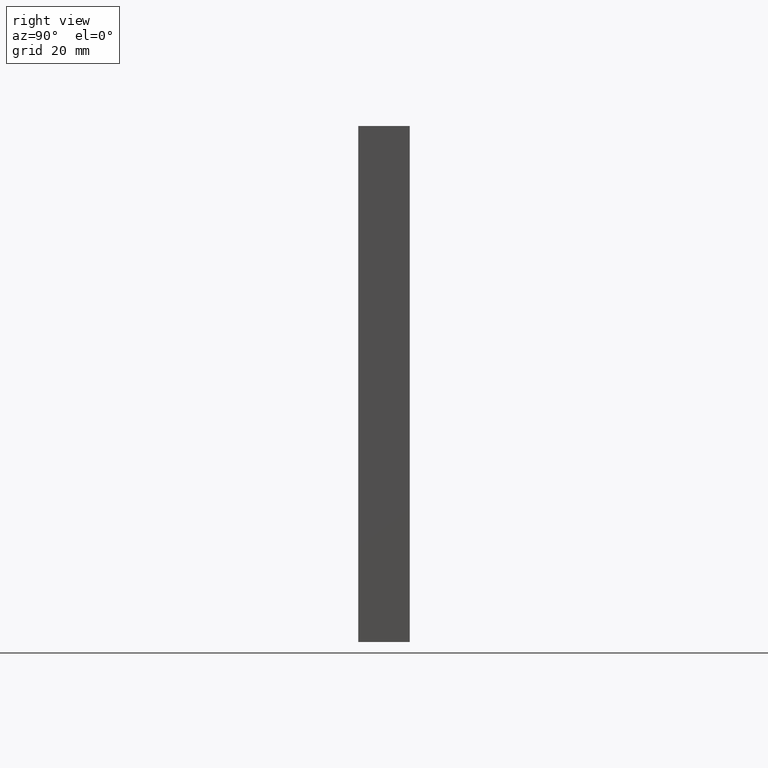
[diagram: clean part render]
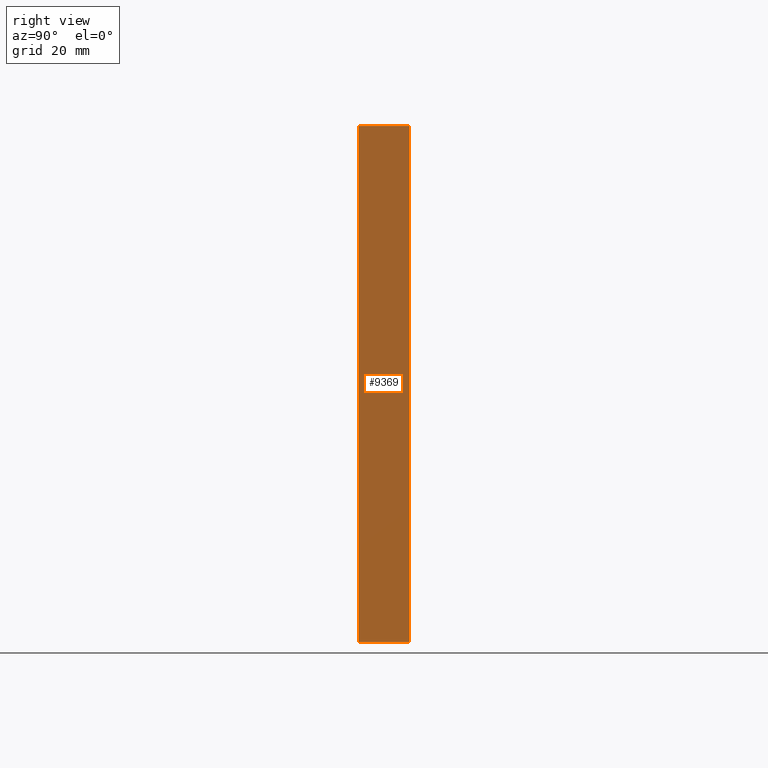
[diagram: same view with one face highlighted and labeled with its STEP entity id]
A machine part, right view. The second image highlights one B-rep face of the part: STEP entity #9369.
In plain terms, the highlighted planar face has unit normal (-1, 0, 0).
Its self-contained STEP definition (entity closure, byte-faithful):
#13 = ORIENTED_EDGE ( 'NONE', *, *, #9505, .F. ) ;
#169 = EDGE_CURVE ( 'NONE', #13005, #1993, #6699, .T. ) ;
#220 = FACE_OUTER_BOUND ( 'NONE', #2548, .T. ) ;
#549 = ORIENTED_EDGE ( 'NONE', *, *, #1329, .T. ) ;
#569 = VECTOR ( 'NONE', #3982, 1000.000000000000000 ) ;
#1191 = CARTESIAN_POINT ( 'NONE',  ( 49.99999999999999289, 10.00000000000000000, -50.00000000000000711 ) ) ;
#1329 = EDGE_CURVE ( 'NONE', #13005, #4646, #11729, .T. ) ;
#1699 = CARTESIAN_POINT ( 'NONE',  ( 49.99999999999999289, 0.000000000000000000, -50.00000000000000711 ) ) ;
#1993 = VERTEX_POINT ( 'NONE', #13055 ) ;
#2548 = EDGE_LOOP ( 'NONE', ( #9999, #13, #13595, #549 ) ) ;
#2861 = DIRECTION ( 'NONE',  ( -0.000000000000000000, -1.000000000000000000, -0.000000000000000000 ) ) ;
#3460 = LINE ( 'NONE', #1699, #569 ) ;
#3982 = DIRECTION ( 'NONE',  ( -6.938893903907228378E-17, -0.000000000000000000, -1.000000000000000000 ) ) ;
#4646 = VERTEX_POINT ( 'NONE', #11408 ) ;
#4939 = CARTESIAN_POINT ( 'NONE',  ( 49.99999999999999289, 10.00000000000000000, -50.00000000000000711 ) ) ;
#5787 = DIRECTION ( 'NONE',  ( -1.000000000000000000, 0.000000000000000000, 6.938893903907228378E-17 ) ) ;
#6511 = LINE ( 'NONE', #4939, #10906 ) ;
#6699 = LINE ( 'NONE', #1191, #12095 ) ;
#7138 = CARTESIAN_POINT ( 'NONE',  ( 50.00000000000000000, 10.00000000000000000, 49.99999999999999289 ) ) ;
#7162 = CARTESIAN_POINT ( 'NONE',  ( 49.99999999999999289, 10.00000000000000000, -50.00000000000000711 ) ) ;
#9361 = PLANE ( 'NONE',  #12660 ) ;
#9369 = ADVANCED_FACE ( 'NONE', ( #220 ), #9361, .F. ) ;
#9444 = EDGE_CURVE ( 'NONE', #4646, #12703, #3460, .T. ) ;
#9505 = EDGE_CURVE ( 'NONE', #1993, #12703, #6511, .T. ) ;
#9959 = CARTESIAN_POINT ( 'NONE',  ( 49.99999999999999289, 0.000000000000000000, -50.00000000000000711 ) ) ;
#9999 = ORIENTED_EDGE ( 'NONE', *, *, #9444, .T. ) ;
#10207 = VECTOR ( 'NONE', #12550, 1000.000000000000000 ) ;
#10906 = VECTOR ( 'NONE', #2861, 1000.000000000000000 ) ;
#11408 = CARTESIAN_POINT ( 'NONE',  ( 50.00000000000000000, 0.000000000000000000, 49.99999999999999289 ) ) ;
#11729 = LINE ( 'NONE', #7138, #10207 ) ;
#11852 = CARTESIAN_POINT ( 'NONE',  ( 50.00000000000000000, 10.00000000000000000, 49.99999999999999289 ) ) ;
#12095 = VECTOR ( 'NONE', #12163, 1000.000000000000000 ) ;
#12163 = DIRECTION ( 'NONE',  ( -6.938893903907228378E-17, -0.000000000000000000, -1.000000000000000000 ) ) ;
#12550 = DIRECTION ( 'NONE',  ( -0.000000000000000000, -1.000000000000000000, -0.000000000000000000 ) ) ;
#12578 = DIRECTION ( 'NONE',  ( 6.938893903907228378E-17, 0.000000000000000000, 1.000000000000000000 ) ) ;
#12660 = AXIS2_PLACEMENT_3D ( 'NONE', #7162, #5787, #12578 ) ;
#12703 = VERTEX_POINT ( 'NONE', #9959 ) ;
#13005 = VERTEX_POINT ( 'NONE', #11852 ) ;
#13055 = CARTESIAN_POINT ( 'NONE',  ( 49.99999999999999289, 10.00000000000000000, -50.00000000000000711 ) ) ;
#13595 = ORIENTED_EDGE ( 'NONE', *, *, #169, .F. ) ;